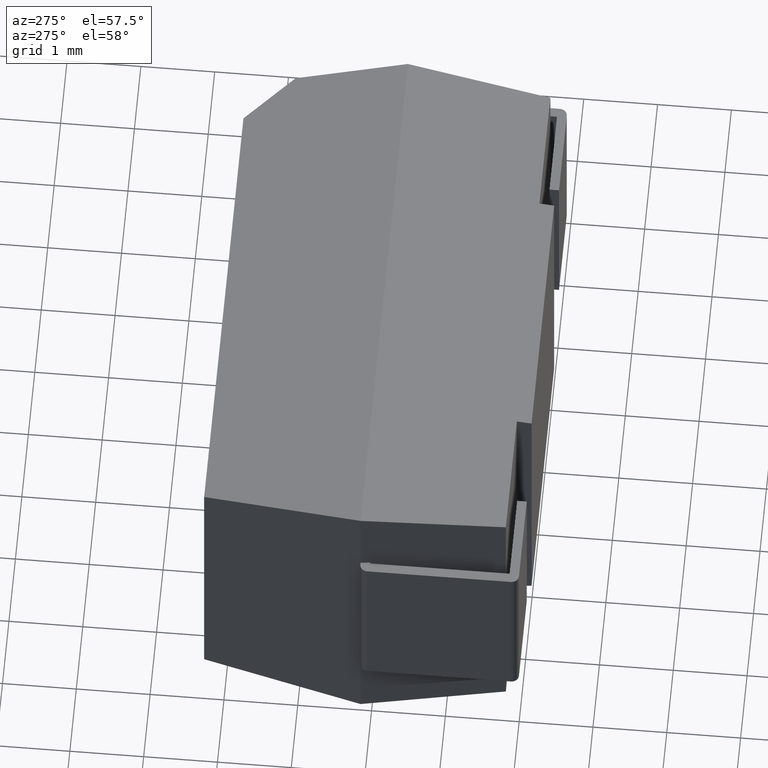
[diagram: clean part render]
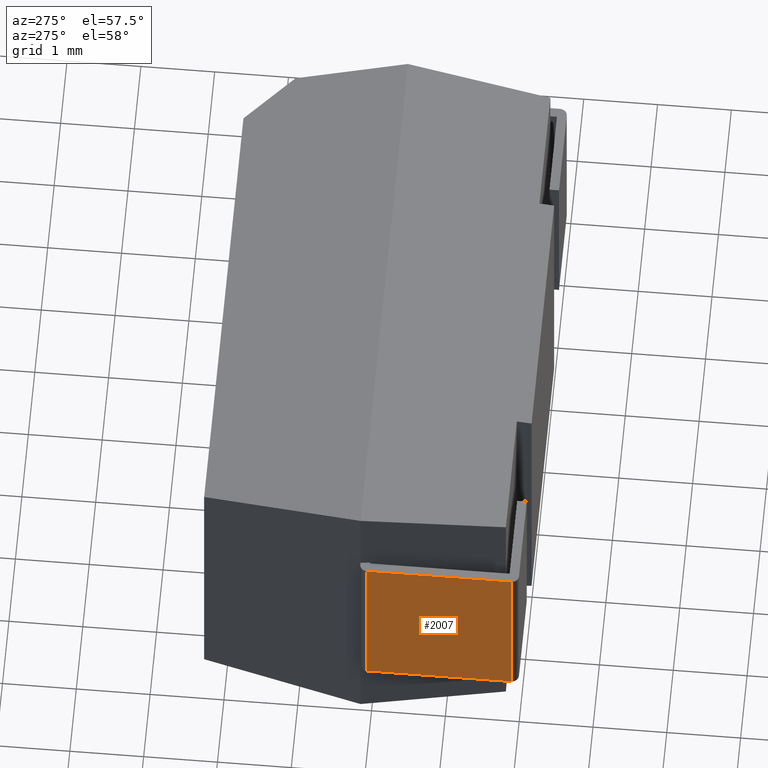
[diagram: same view with one face highlighted and labeled with its STEP entity id]
A machine part, auxiliary view. The second image highlights one B-rep face of the part: STEP entity #2007.
In plain terms, the highlighted planar face has unit normal (-1, -0, 0).
Its self-contained STEP definition (entity closure, byte-faithful):
#206 = VECTOR ( 'NONE', #2019, 1000.000000000000000 ) ;
#259 = EDGE_CURVE ( 'NONE', #2362, #3725, #2366, .T. ) ;
#352 = EDGE_CURVE ( 'NONE', #2362, #3352, #2616, .T. ) ;
#409 = FACE_OUTER_BOUND ( 'NONE', #891, .T. ) ;
#421 = VECTOR ( 'NONE', #2887, 1000.000000000000000 ) ;
#545 = CARTESIAN_POINT ( 'NONE',  ( -0.1299999999999999767, 2.150000000000003464, -1.049999999999999822 ) ) ;
#847 = CARTESIAN_POINT ( 'NONE',  ( -0.1299999999999999767, 0.1000000000000032946, -1.049999999999999822 ) ) ;
#891 = EDGE_LOOP ( 'NONE', ( #1903, #2061, #2714, #1703 ) ) ;
#1159 = VERTEX_POINT ( 'NONE', #3274 ) ;
#1172 = CARTESIAN_POINT ( 'NONE',  ( -0.1299999999999999767, 0.1000000000000034750, 0.000000000000000000 ) ) ;
#1356 = DIRECTION ( 'NONE',  ( -0.000000000000000000, -0.000000000000000000, -1.000000000000000000 ) ) ;
#1592 = DIRECTION ( 'NONE',  ( -0.000000000000000000, 1.000000000000000000, 3.336006684570785271E-15 ) ) ;
#1608 = DIRECTION ( 'NONE',  ( 0.000000000000000000, 0.000000000000000000, 1.000000000000000000 ) ) ;
#1683 = LINE ( 'NONE', #545, #421 ) ;
#1689 = CARTESIAN_POINT ( 'NONE',  ( -0.1299999999999999767, 2.050000000000003819, -0.000000000000000000 ) ) ;
#1703 = ORIENTED_EDGE ( 'NONE', *, *, #3640, .T. ) ;
#1893 = PLANE ( 'NONE',  #2207 ) ;
#1903 = ORIENTED_EDGE ( 'NONE', *, *, #352, .F. ) ;
#1913 = CARTESIAN_POINT ( 'NONE',  ( -0.1299999999999999767, 0.000000000000000000, 0.000000000000000000 ) ) ;
#2007 = ADVANCED_FACE ( 'NONE', ( #409 ), #1893, .T. ) ;
#2019 = DIRECTION ( 'NONE',  ( -0.000000000000000000, -0.000000000000000000, 1.000000000000000000 ) ) ;
#2061 = ORIENTED_EDGE ( 'NONE', *, *, #259, .T. ) ;
#2136 = EDGE_CURVE ( 'NONE', #1159, #3725, #1683, .T. ) ;
#2207 = AXIS2_PLACEMENT_3D ( 'NONE', #1913, #3642, #1608 ) ;
#2258 = LINE ( 'NONE', #1689, #3113 ) ;
#2362 = VERTEX_POINT ( 'NONE', #3034 ) ;
#2366 = LINE ( 'NONE', #1172, #206 ) ;
#2616 = LINE ( 'NONE', #3058, #3230 ) ;
#2714 = ORIENTED_EDGE ( 'NONE', *, *, #2136, .F. ) ;
#2887 = DIRECTION ( 'NONE',  ( 0.000000000000000000, -1.000000000000000000, 0.000000000000000000 ) ) ;
#2944 = CARTESIAN_POINT ( 'NONE',  ( -0.1299999999999999767, 2.050000000000003819, -3.550000000000000266 ) ) ;
#3034 = CARTESIAN_POINT ( 'NONE',  ( -0.1299999999999999767, 0.1000000000000032946, -3.550000000000006928 ) ) ;
#3058 = CARTESIAN_POINT ( 'NONE',  ( -0.1299999999999999767, 2.150000000000003464, -3.549999999999999822 ) ) ;
#3113 = VECTOR ( 'NONE', #1356, 1000.000000000000000 ) ;
#3230 = VECTOR ( 'NONE', #1592, 1000.000000000000000 ) ;
#3274 = CARTESIAN_POINT ( 'NONE',  ( -0.1299999999999999767, 2.050000000000003819, -1.049999999999999822 ) ) ;
#3352 = VERTEX_POINT ( 'NONE', #2944 ) ;
#3640 = EDGE_CURVE ( 'NONE', #1159, #3352, #2258, .T. ) ;
#3642 = DIRECTION ( 'NONE',  ( -1.000000000000000000, -0.000000000000000000, 0.000000000000000000 ) ) ;
#3725 = VERTEX_POINT ( 'NONE', #847 ) ;